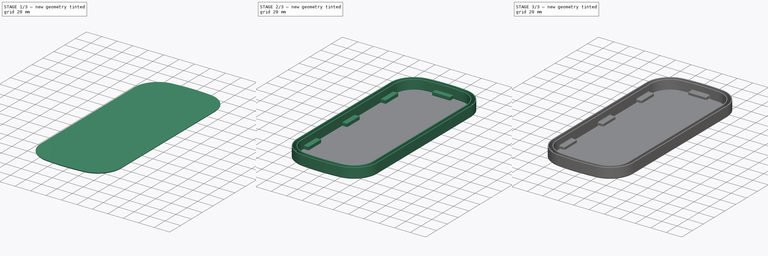
[diagram: build sequence overview — one tinted view per stage of 3, left to right]
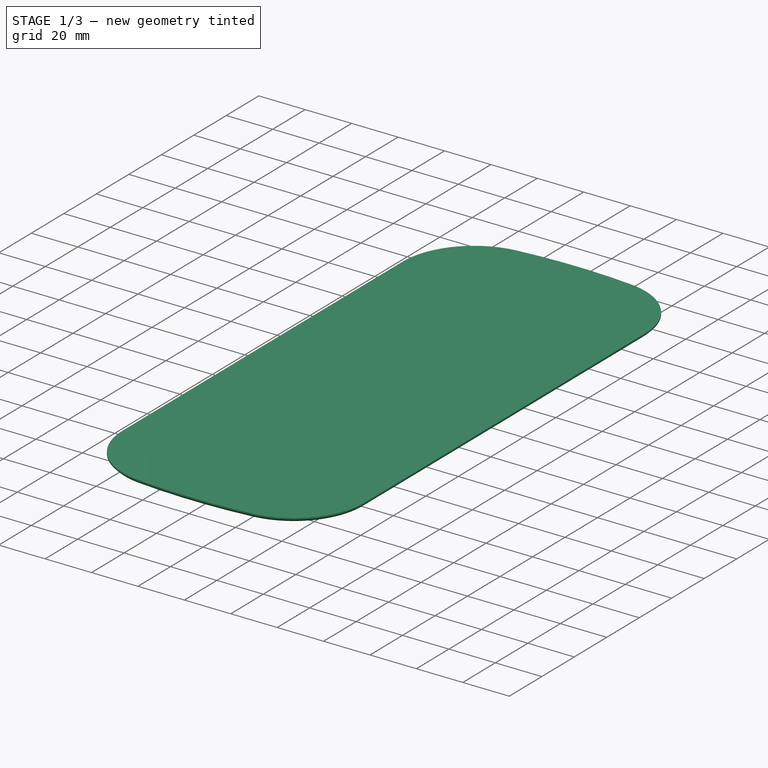
[diagram: stage 1 of 3 — iso view after this stage's code; geometry added in this stage tinted green]
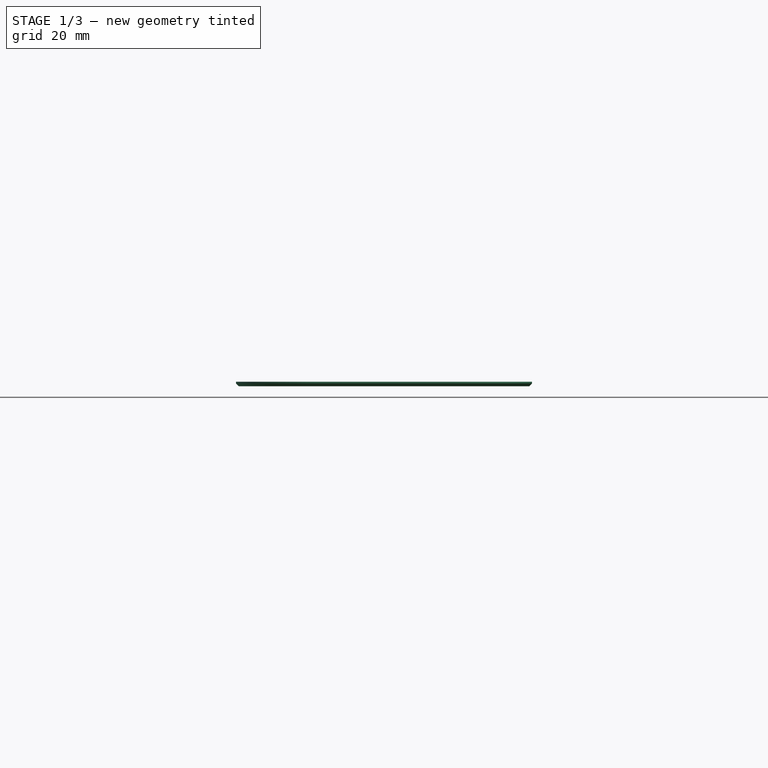
[diagram: stage 1 of 3 — front view after this stage's code; geometry added in this stage tinted green]
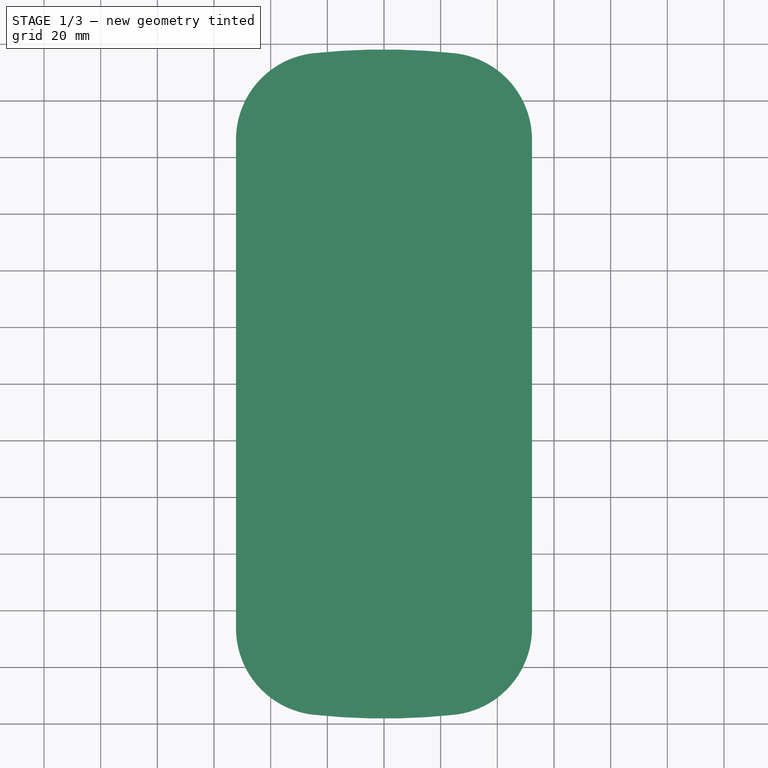
[diagram: stage 1 of 3 — top view after this stage's code; geometry added in this stage tinted green]
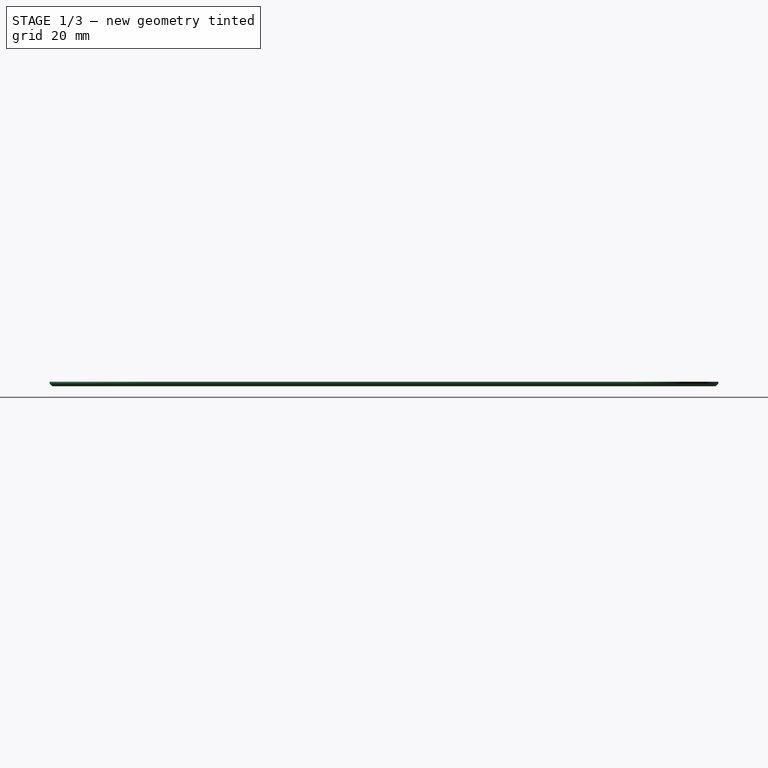
[diagram: stage 1 of 3 — right view after this stage's code; geometry added in this stage tinted green]
FCSTD DOCUMENT  (FreeCAD 1.1R44874 (Git))
Label: DryBoxCap
License: All rights reserved
LicenseURL: https://en.wikipedia.org/wiki/All_rights_reserved
objects: Sketcher::SketchObject×6, PartDesign::Pad×3, PartDesign::Fillet×2, App::Point×1, Image::ImagePlane×1, PartDesign::Chamfer×1, PartDesign::Pocket×1, PartDesign::Body×1
note: 34 computed .brp shape members not serialized (recipe doc carries the construction recipe); baked Part::Feature solids carry a one-line shape summary decoded from their .brp

FEATURE [App::Point] Origin001
  Role = Origin
FEATURE [Sketcher::SketchObject] Sketch
  ArcFitTolerance = 1e-06
  AttachmentSupport = -> [Origin]
  ExternalTypes = [0]
  FullyConstrained = true
  MakeInternals = false
  MapMode = 5
  _ExternalGeoVersion = 1
  expr: Constraints[12] = .Constraints.Length / 2.34
  expr: Constraints[26] = .Constraints.Length / 8
  sketch-geometry (10):
    g0: ArcOfCircle CenterX=0 CenterY=-115 CenterZ=0 NormalX=0 NormalY=0 NormalZ=1 AngleXU=0 Radius=230 StartAngle=1.46415 EndAngle=1.67745
    g1: ArcOfCircle CenterX=0 CenterY=115 CenterZ=0 NormalX=0 NormalY=0 NormalZ=1 AngleXU=0 Radius=230 StartAngle=4.60574 EndAngle=4.81904
    g2: LineSegment StartX=-49.1453 StartY=86.25 StartZ=0 EndX=-49.1453 EndY=-86.25 EndZ=0
    g3: LineSegment StartX=49.1453 StartY=86.25 StartZ=0 EndX=49.1453 EndY=-86.25 EndZ=0
    g4: LineSegment [constr] StartX=-49.1453 StartY=-86.25 StartZ=0 EndX=49.1453 EndY=-86.25 EndZ=0
    g5: LineSegment [constr] StartX=-49.1453 StartY=86.25 StartZ=0 EndX=49.1453 EndY=86.25 EndZ=0
    g6: ArcOfCircle CenterX=-21.5453 CenterY=86.25 CenterZ=0 NormalX=0 NormalY=0 NormalZ=1 AngleXU=0 Radius=27.6 StartAngle=1.67745 EndAngle=3.14159
    g7: ArcOfCircle CenterX=21.5453 CenterY=86.25 CenterZ=0 NormalX=0 NormalY=0 NormalZ=1 AngleXU=0 Radius=27.6 StartAngle=-9e-16 EndAngle=1.46415
    g8: ArcOfCircle CenterX=-21.5453 CenterY=-86.25 CenterZ=0 NormalX=0 NormalY=0 NormalZ=1 AngleXU=0 Radius=27.6 StartAngle=3.14159 EndAngle=4.60574
    g9: ArcOfCircle CenterX=21.5453 CenterY=-86.25 CenterZ=0 NormalX=0 NormalY=0 NormalZ=1 AngleXU=0 Radius=27.6 StartAngle=4.81904 EndAngle=6.28319
  constraints (29):
    c: PointOnObject(g0,g-2)
    c: Symmetric(g0,g1,g-1)
    c: Vertical(g3)
    c: Coincident(g4,g2)
    c: Coincident(g4,g3)
    c: Horizontal(g4)
    c: Coincident(g5,g2)
    c: Coincident(g5,g3)
    c: Symmetric(g2,g3,g-2)
    c: Symmetric(g2,g2,g-1)
    c: PointOnObject(g6,g5)
    c: Coincident(g6,g2)
    c: DistanceX(g2,g3) = 98.2906
    c: Tangent(g0,g6) = -1.5708
    c: Coincident(g7,g3)
    c: Tangent(g7,g0) = -1.5708
    c: PointOnObject(g0,g1)
    c: PointOnObject(g1,g0)
    c: DistanceY(g0,g1) = 230  'Length'
    c: PointOnObject(g8,g4)
    c: Coincident(g8,g2)
    c: Coincident(g9,g3)
    c: Tangent(g1,g9) = -1.5708
    c: Tangent(g1,g8) = -1.5708
    c: Equal(g7,g6)
    c: Equal(g8,g9)
    c: DistanceY(g2,g1) = 28.75
    c: Radius(g6) = 27.6
    c: DistanceY(g2,g2) = 172.5
FEATURE [Image::ImagePlane] PXL_20260516_094040783
  Placement = pos=(12.132,-8.31046,0) rot=(0,0,1;0.015708rad)
  XSize = 275
  YSize = 366.667
FEATURE [Sketcher::SketchObject] Sketch001
  ArcFitTolerance = 1e-06
  AttachmentSupport = -> [Origin]
  ExternalGeometry = -> [Sketch]
  ExternalTypes = [0,0,0,0,0,0]
  FullyConstrained = true
  MakeInternals = false
  MapMode = 5
  _ExternalGeoVersion = 1
  sketch-geometry (87):
    g0: ArcOfCircle CenterX=-21.5453 CenterY=86.25 CenterZ=0 NormalX=0 NormalY=0 NormalZ=1 AngleXU=0 Radius=30.7 StartAngle=1.67745 EndAngle=3.14159
    g1: ArcOfCircle CenterX=0 CenterY=-115 CenterZ=0 NormalX=0 NormalY=0 NormalZ=1 AngleXU=0 Radius=233.1 StartAngle=1.46415 EndAngle=1.67745
    g2: LineSegment [constr] StartX=-21.5453 StartY=86.25 StartZ=0 EndX=-24.8133 EndY=116.776 EndZ=0
    g3: LineSegment [constr] StartX=-21.5453 StartY=86.25 StartZ=0 EndX=-52.2453 EndY=86.25 EndZ=0
    g4: LineSegment [constr] StartX=21.5453 StartY=86.25 StartZ=0 EndX=24.8133 EndY=116.776 EndZ=0
    g5: ArcOfCircle CenterX=21.5453 CenterY=86.25 CenterZ=0 NormalX=0 NormalY=0 NormalZ=1 AngleXU=0 Radius=30.7 StartAngle=-9e-16 EndAngle=1.46415
    g6: LineSegment [constr] StartX=21.5453 StartY=86.25 StartZ=0 EndX=52.2453 EndY=86.25 EndZ=0
    g7: LineSegment [constr] StartX=-21.5453 StartY=-86.25 StartZ=0 EndX=-52.2453 EndY=-86.25 EndZ=0
    g8: LineSegment [constr] StartX=21.5453 StartY=-86.25 StartZ=0 EndX=52.2453 EndY=-86.25 EndZ=0
    g9: LineSegment [constr] StartX=21.5453 StartY=-86.25 StartZ=0 EndX=24.8133 EndY=-116.776 EndZ=0
    g10: LineSegment [constr] StartX=-21.5453 StartY=-86.25 StartZ=0 EndX=-24.8133 EndY=-116.776 EndZ=0
    g11: LineSegment StartX=52.2453 StartY=86.25 StartZ=0 EndX=52.2453 EndY=-86.25 EndZ=0
    g12: LineSegment StartX=-52.2453 StartY=86.25 StartZ=0 EndX=-52.2453 EndY=-86.25 EndZ=0
    g13: ArcOfCircle CenterX=-21.5453 CenterY=-86.25 CenterZ=0 NormalX=0 NormalY=0 NormalZ=1 AngleXU=0 Radius=30.7 StartAngle=3.14159 EndAngle=4.60574
    g14: ArcOfCircle CenterX=21.5453 CenterY=-86.25 CenterZ=0 NormalX=0 NormalY=0 NormalZ=1 AngleXU=0 Radius=30.7 StartAngle=4.81904 EndAngle=6.28319
    g15: ArcOfCircle CenterX=0 CenterY=115 CenterZ=0 NormalX=0 NormalY=0 NormalZ=1 AngleXU=0 Radius=233.1 StartAngle=4.60574 EndAngle=4.81904
    g16: ArcOfCircle CenterX=-21.5453 CenterY=86.25 CenterZ=0 NormalX=0 NormalY=0 NormalZ=1 AngleXU=0 Radius=24.5 StartAngle=1.67745 EndAngle=3.14159
    g17: ArcOfCircle CenterX=21.5453 CenterY=86.25 CenterZ=0 NormalX=0 NormalY=0 NormalZ=1 AngleXU=0 Radius=24.5 StartAngle=-9e-16 EndAngle=1.46415
    g18: ArcOfCircle CenterX=0 CenterY=115 CenterZ=0 NormalX=0 NormalY=0 NormalZ=1 AngleXU=0 Radius=226.9 StartAngle=4.60574 EndAngle=4.81904
    g19: ArcOfCircle CenterX=21.5453 CenterY=-86.25 CenterZ=0 NormalX=0 NormalY=0 NormalZ=1 AngleXU=0 Radius=24.5 StartAngle=4.81904 EndAngle=6.28319
    g20: ArcOfCircle CenterX=-21.5453 CenterY=-86.25 CenterZ=0 NormalX=0 NormalY=0 NormalZ=1 AngleXU=0 Radius=24.5 StartAngle=3.14159 EndAngle=4.60574
    g21: ArcOfCircle CenterX=0 CenterY=-115 CenterZ=0 NormalX=0 NormalY=0 NormalZ=1 AngleXU=0 Radius=226.9 StartAngle=1.46415 EndAngle=1.67745
    g22: LineSegment StartX=46.0453 StartY=86.25 StartZ=0 EndX=46.0453 EndY=-86.25 EndZ=0
    g23: LineSegment StartX=-46.0453 StartY=-86.25 StartZ=0 EndX=-46.0453 EndY=86.25 EndZ=0
    g24: LineSegment [constr] StartX=0 StartY=118.1 StartZ=0 EndX=0 EndY=111.9 EndZ=0
    g25: ArcOfCircle CenterX=-21.5453 CenterY=86.25 CenterZ=0 NormalX=0 NormalY=0 NormalZ=1 AngleXU=0 Radius=29.5 StartAngle=1.67745 EndAngle=3.14159
    g26: ArcOfCircle CenterX=0 CenterY=-115 CenterZ=0 NormalX=0 NormalY=0 NormalZ=1 AngleXU=0 Radius=231.9 StartAngle=1.46415 EndAngle=1.67745
    g27: ArcOfCircle CenterX=21.5453 CenterY=86.25 CenterZ=0 NormalX=0 NormalY=0 NormalZ=1 AngleXU=0 Radius=29.5 StartAngle=-9e-16 EndAngle=1.46415
    g28: LineSegment StartX=51.0453 StartY=86.25 StartZ=0 EndX=51.0453 EndY=-86.25 EndZ=0
    g29: ArcOfCircle CenterX=21.5453 CenterY=-86.25 CenterZ=0 NormalX=0 NormalY=0 NormalZ=1 AngleXU=0 Radius=29.5 StartAngle=4.81904 EndAngle=6.28319
    g30: ArcOfCircle CenterX=0 CenterY=115 CenterZ=0 NormalX=0 NormalY=0 NormalZ=1 AngleXU=0 Radius=231.9 StartAngle=4.60574 EndAngle=4.81904
    g31: ArcOfCircle CenterX=-21.5453 CenterY=-86.25 CenterZ=0 NormalX=0 NormalY=0 NormalZ=1 AngleXU=0 Radius=29.5 StartAngle=3.14159 EndAngle=4.60574
    g32: LineSegment StartX=-51.0453 StartY=-86.25 StartZ=0 EndX=-51.0453 EndY=86.25 EndZ=0
    g33: LineSegment [constr] StartX=0 StartY=-118.1 StartZ=0 EndX=0 EndY=-116.9 EndZ=0
    g34: ArcOfCircle CenterX=0 CenterY=-115 CenterZ=0 NormalX=0 NormalY=0 NormalZ=1 AngleXU=0 Radius=228.1 StartAngle=1.46415 EndAngle=1.67745
    g35: ArcOfCircle CenterX=21.5453 CenterY=86.25 CenterZ=0 NormalX=0 NormalY=0 NormalZ=1 AngleXU=0 Radius=25.7 StartAngle=-1.8e-15 EndAngle=1.46415
    g36: ArcOfCircle CenterX=-21.5453 CenterY=86.25 CenterZ=0 NormalX=0 NormalY=0 NormalZ=1 AngleXU=0 Radius=25.7 StartAngle=1.67745 EndAngle=3.14159
    g37: LineSegment StartX=47.2453 StartY=86.25 StartZ=0 EndX=47.2453 EndY=-86.25 EndZ=0
    g38: ArcOfCircle CenterX=21.5453 CenterY=-86.25 CenterZ=0 NormalX=0 NormalY=0 NormalZ=1 AngleXU=0 Radius=25.7 StartAngle=4.81904 EndAngle=6.28319
    g39: ArcOfCircle CenterX=0 CenterY=115 CenterZ=0 NormalX=0 NormalY=0 NormalZ=1 AngleXU=0 Radius=228.1 StartAngle=4.60574 EndAngle=4.81904
    g40: ArcOfCircle CenterX=-21.5453 CenterY=-86.25 CenterZ=0 NormalX=0 NormalY=0 NormalZ=1 AngleXU=0 Radius=25.7 StartAngle=3.14159 EndAngle=4.60574
    g41: LineSegment [constr] StartX=0 StartY=-111.9 StartZ=0 EndX=0 EndY=-113.1 EndZ=0
    g42: LineSegment StartX=-47.2453 StartY=-86.25 StartZ=0 EndX=-47.2453 EndY=86.25 EndZ=0
    g43: LineSegment StartX=-10 StartY=111.1 StartZ=0 EndX=-10 EndY=107.1 EndZ=0
    g44: LineSegment StartX=-10 StartY=107.1 StartZ=0 EndX=10 EndY=107.1 EndZ=0
    g45: LineSegment StartX=10 StartY=107.1 StartZ=0 EndX=10 EndY=111.1 EndZ=0
    g46: LineSegment StartX=10 StartY=111.1 StartZ=0 EndX=-10 EndY=111.1 EndZ=0
    g47: LineSegment StartX=-10 StartY=-107.1 StartZ=0 EndX=-10 EndY=-111.1 EndZ=0
    g48: LineSegment StartX=-10 StartY=-111.1 StartZ=0 EndX=10 EndY=-111.1 EndZ=0
    g49: LineSegment StartX=10 StartY=-111.1 StartZ=0 EndX=10 EndY=-107.1 EndZ=0
    g50: LineSegment StartX=10 StartY=-107.1 StartZ=0 EndX=-10 EndY=-107.1 EndZ=0
    g51: LineSegment StartX=45.2453 StartY=-81.25 StartZ=0 EndX=45.2453 EndY=-61.25 EndZ=0
    g52: LineSegment StartX=45.2453 StartY=-61.25 StartZ=0 EndX=41.2453 EndY=-61.25 EndZ=0
    g53: LineSegment StartX=41.2453 StartY=-61.25 StartZ=0 EndX=41.2453 EndY=-81.25 EndZ=0
    g54: LineSegment StartX=41.2453 StartY=-81.25 StartZ=0 EndX=45.2453 EndY=-81.25 EndZ=0
    g55: LineSegment StartX=-41.2453 StartY=-81.25 StartZ=0 EndX=-41.2453 EndY=-61.25 EndZ=0
    g56: LineSegment StartX=-41.2453 StartY=-61.25 StartZ=0 EndX=-45.2453 EndY=-61.25 EndZ=0
    g57: LineSegment StartX=-45.2453 StartY=-61.25 StartZ=0 EndX=-45.2453 EndY=-81.25 EndZ=0
    g58: LineSegment StartX=-45.2453 StartY=-81.25 StartZ=0 EndX=-41.2453 EndY=-81.25 EndZ=0
    g59: LineSegment StartX=41.2453 StartY=10 StartZ=0 EndX=41.2453 EndY=-10 EndZ=0
    g60: LineSegment StartX=41.2453 StartY=-10 StartZ=0 EndX=45.2453 EndY=-10 EndZ=0
    g61: LineSegment StartX=45.2453 StartY=-10 StartZ=0 EndX=45.2453 EndY=10 EndZ=0
    g62: LineSegment StartX=45.2453 StartY=10 StartZ=0 EndX=41.2453 EndY=10 EndZ=0
    g63: LineSegment StartX=41.2453 StartY=81.25 StartZ=0 EndX=41.2453 EndY=61.25 EndZ=0
    g64: LineSegment StartX=41.2453 StartY=61.25 StartZ=0 EndX=45.2453 EndY=61.25 EndZ=0
    g65: LineSegment StartX=45.2453 StartY=61.25 StartZ=0 EndX=45.2453 EndY=81.25 EndZ=0
    g66: LineSegment StartX=45.2453 StartY=81.25 StartZ=0 EndX=41.2453 EndY=81.25 EndZ=0
    g67: LineSegment StartX=-45.2453 StartY=81.25 StartZ=0 EndX=-45.2453 EndY=61.25 EndZ=0
    g68: LineSegment StartX=-45.2453 StartY=61.25 StartZ=0 EndX=-41.2453 EndY=61.25 EndZ=0
    g69: LineSegment StartX=-41.2453 StartY=61.25 StartZ=0 EndX=-41.2453 EndY=81.25 EndZ=0
    g70: LineSegment StartX=-41.2453 StartY=81.25 StartZ=0 EndX=-45.2453 EndY=81.25 EndZ=0
    g71: LineSegment StartX=-45.2453 StartY=10 StartZ=0 EndX=-45.2453 EndY=-10 EndZ=0
    g72: LineSegment StartX=-45.2453 StartY=-10 StartZ=0 EndX=-41.2453 EndY=-10 EndZ=0
    g73: LineSegment StartX=-41.2453 StartY=-10 StartZ=0 EndX=-41.2453 EndY=10 EndZ=0
    g74: LineSegment StartX=-41.2453 StartY=10 StartZ=0 EndX=-45.2453 EndY=10 EndZ=0
    g75: LineSegment [constr] StartX=0 StartY=118.1 StartZ=0 EndX=-10 EndY=118.1 EndZ=0
    g76: LineSegment [constr] StartX=-10 StartY=111.1 StartZ=0 EndX=-10 EndY=118.1 EndZ=0
    g77: LineSegment [constr] StartX=-45.2453 StartY=61.25 StartZ=0 EndX=-52.2453 EndY=61.25 EndZ=0
    g78: LineSegment [constr] StartX=-45.2453 StartY=-10 StartZ=0 EndX=-52.2453 EndY=-10 EndZ=0
    g79: LineSegment [constr] StartX=-45.2453 StartY=-81.25 StartZ=0 EndX=-52.2453 EndY=-81.25 EndZ=0
    g80: LineSegment [constr] StartX=-41.2453 StartY=-81.25 StartZ=0 EndX=-41.2453 EndY=-86.25 EndZ=0
    g81: LineSegment [constr] StartX=-41.2453 StartY=81.25 StartZ=0 EndX=-41.2453 EndY=86.25 EndZ=0
    g82: LineSegment [constr] StartX=0 StartY=-118.1 StartZ=0 EndX=10 EndY=-118.1 EndZ=0
    g83: LineSegment [constr] StartX=10 StartY=-111.1 StartZ=0 EndX=10 EndY=-118.1 EndZ=0
    g84: LineSegment [constr] StartX=45.2453 StartY=-61.25 StartZ=0 EndX=52.2453 EndY=-61.25 EndZ=0
    g85: LineSegment [constr] StartX=45.2453 StartY=10 StartZ=0 EndX=52.2453 EndY=10 EndZ=0
    g86: LineSegment [constr] StartX=45.2453 StartY=81.25 StartZ=0 EndX=52.2453 EndY=81.25 EndZ=0
  constraints (251):
    c: Coincident(g0,g-3)
    c: Coincident(g1,g-8)
    c: Coincident(g0,g1)
    c: Coincident(g2,g0)
    c: Coincident(g2,g0)
    c: PointOnObject(g-8,g2)
    c: Coincident(g3,g0)
    c: Coincident(g3,g0)
    c: PointOnObject(g-3,g3)
    c: Coincident(g4,g-4)
    c: Coincident(g4,g1)
    c: Coincident(g5,g4)
    c: Coincident(g5,g1)
    c: Coincident(g6,g4)
    c: Coincident(g6,g5)
    c: PointOnObject(g-8,g4)
    c: PointOnObject(g-4,g6)
    c: Coincident(g7,g-6)
    c: Coincident(g8,g-5)
    c: Coincident(g9,g8)
    c: Coincident(g10,g7)
    c: PointOnObject(g-6,g7)
    c: PointOnObject(g-7,g10)
    c: PointOnObject(g-7,g9)
    c: PointOnObject(g-5,g8)
    c: Coincident(g11,g5)
    c: Coincident(g11,g8)
    c: Vertical(g11)
    c: Coincident(g12,g0)
    c: Coincident(g12,g7)
    c: Coincident(g13,g7)
    c: Coincident(g13,g7)
    c: Coincident(g13,g10)
    c: Coincident(g14,g8)
    c: Coincident(g14,g8)
    c: Coincident(g14,g9)
    c: Coincident(g16,g0)
    c: PointOnObject(g16,g3)
    c: PointOnObject(g16,g2)
    c: Coincident(g17,g4)
    c: PointOnObject(g17,g4)
    c: PointOnObject(g17,g6)
    c: Coincident(g18,g15)
    c: PointOnObject(g18,g10)
    c: PointOnObject(g18,g9)
    c: Coincident(g19,g8)
    c: Coincident(g19,g18)
    c: PointOnObject(g19,g8)
    c: Coincident(g20,g7)
    c: Coincident(g20,g18)
    c: PointOnObject(g20,g7)
    c: Coincident(g21,g1)
    c: Coincident(g21,g16)
    c: Coincident(g21,g17)
    c: Coincident(g22,g17)
    c: Coincident(g22,g19)
    c: Vertical(g22)
    c: Coincident(g23,g20)
    c: Coincident(g23,g16)
    c: PointOnObject(g24,g1)
    c: PointOnObject(g24,g21)
    c: Symmetric(g24,g24,g15)
    c: Vertical(g24)
    c: Coincident(g15,g-7)
    c: Coincident(g10,g15)
    c: Coincident(g15,g9)
    c: Coincident(g25,g0)
    c: PointOnObject(g25,g3)
    c: PointOnObject(g25,g2)
    c: Coincident(g26,g1)
    c: Coincident(g26,g25)
    c: PointOnObject(g26,g4)
    c: Coincident(g27,g4)
    c: Coincident(g27,g26)
    c: PointOnObject(g27,g6)
    c: Coincident(g28,g27)
    c: PointOnObject(g28,g8)
    c: Vertical(g28)
    c: Coincident(g29,g8)
    c: Coincident(g29,g28)
    c: PointOnObject(g29,g9)
    c: Coincident(g30,g15)
    c: Coincident(g30,g29)
    c: PointOnObject(g30,g10)
    c: Coincident(g31,g7)
    c: Coincident(g31,g30)
    c: PointOnObject(g31,g7)
    c: Coincident(g32,g31)
    c: Coincident(g32,g25)
    c: PointOnObject(g33,g15)
    c: PointOnObject(g33,g30)
    c: Vertical(g33)
    c: PointOnObject(g1,g33)
    c: DistanceY(g33,g33) = 1.2
    c: Coincident(g34,g1)
    c: PointOnObject(g34,g2)
    c: PointOnObject(g34,g4)
    c: Coincident(g35,g4)
    c: Coincident(g35,g34)
    c: PointOnObject(g35,g6)
    c: Coincident(g36,g0)
    c: Coincident(g36,g34)
    c: PointOnObject(g36,g3)
    c: Coincident(g37,g35)
    c: PointOnObject(g37,g8)
    c: Vertical(g37)
    c: Coincident(g38,g8)
    c: Coincident(g38,g37)
    c: PointOnObject(g38,g9)
    c: Coincident(g39,g15)
    c: Coincident(g39,g38)
    c: PointOnObject(g39,g10)
    c: Coincident(g40,g7)
    c: Coincident(g40,g39)
    c: PointOnObject(g40,g7)
    c: PointOnObject(g41,g18)
    c: PointOnObject(g41,g39)
    c: Vertical(g41)
    c: PointOnObject(g1,g41)
    c: Equal(g41,g33)
    c: Coincident(g42,g40)
    c: Coincident(g42,g36)
    c: DistanceY(g33,g41) = 3.8
    c: Coincident(g43,g44)
    c: Coincident(g44,g45)
    c: Coincident(g45,g46)
    c: Coincident(g46,g43)
    c: Vertical(g43)
    c: Vertical(g45)
    c: Horizontal(g44)
    c: Coincident(g47,g48)
    c: Coincident(g48,g49)
    c: Coincident(g49,g50)
    c: Coincident(g50,g47)
    c: Vertical(g47)
    c: Vertical(g49)
    c: Horizontal(g48)
    c: Horizontal(g50)
    c: Coincident(g51,g52)
    c: Coincident(g52,g53)
    c: Coincident(g53,g54)
    c: Coincident(g54,g51)
    c: Vertical(g51)
    c: Vertical(g53)
    c: Horizontal(g52)
    c: Horizontal(g54)
    c: Coincident(g55,g56)
    c: Coincident(g56,g57)
    c: Coincident(g57,g58)
    c: Coincident(g58,g55)
    c: Vertical(g55)
    c: Vertical(g57)
    c: Horizontal(g56)
    c: Horizontal(g58)
    c: Coincident(g59,g60)
    c: Coincident(g60,g61)
    c: Coincident(g61,g62)
    c: Coincident(g62,g59)
    c: Vertical(g59)
    c: Vertical(g61)
    c: Horizontal(g60)
    c: Horizontal(g62)
    c: Coincident(g63,g64)
    c: Coincident(g64,g65)
    c: Coincident(g65,g66)
    c: Coincident(g66,g63)
    c: Vertical(g63)
    c: Vertical(g65)
    c: Horizontal(g64)
    c: Horizontal(g66)
    c: Coincident(g67,g68)
    c: Coincident(g68,g69)
    c: Coincident(g69,g70)
    c: Coincident(g70,g67)
    c: Vertical(g67)
    c: Vertical(g69)
    c: Horizontal(g68)
    c: Horizontal(g70)
    c: Coincident(g71,g72)
    c: Coincident(g72,g73)
    c: Coincident(g73,g74)
    c: Coincident(g74,g71)
    c: Vertical(g71)
    c: Horizontal(g72)
    c: Horizontal(g74)
    c: Equal(g43,g68)
    c: Equal(g68,g72)
    c: Equal(g72,g58)
    c: Equal(g58,g49)
    c: Equal(g49,g52)
    c: Equal(g52,g62)
    c: Equal(g62,g66)
    c: Equal(g44,g69)
    c: Equal(g69,g73)
    c: Equal(g73,g55)
    c: Equal(g55,g50)
    c: Equal(g50,g53)
    c: Equal(g53,g59)
    c: Equal(g59,g63)
    c: DistanceX(g56,g56) = 4
    c: Coincident(g75,g24)
    c: Coincident(g76,g43)
    c: Coincident(g76,g75)
    c: Vertical(g76)
    c: Horizontal(g75)
    c: DistanceY(g76,g76) = 7
    c: Coincident(g77,g67)
    c: PointOnObject(g77,g12)
    c: Horizontal(g77)
    c: Equal(g76,g77)
    c: Coincident(g78,g71)
    c: PointOnObject(g78,g12)
    c: Horizontal(g78)
    c: Equal(g77,g78)
    c: DistanceY(g55,g55) = 20
    c: Coincident(g79,g57)
    c: PointOnObject(g79,g12)
    c: Horizontal(g79)
    c: Equal(g78,g79)
    c: Coincident(g80,g55)
    c: PointOnObject(g80,g7)
    c: Vertical(g80)
    c: Coincident(g81,g69)
    c: PointOnObject(g81,g3)
    c: Vertical(g81)
    c: Equal(g81,g80)
    c: Coincident(g82,g33)
    c: Coincident(g83,g48)
    c: Coincident(g83,g82)
    c: Vertical(g83)
    c: Horizontal(g82)
    c: Symmetric(g43,g45,g24)
    c: Equal(g76,g83)
    c: PointOnObject(g47,g43)
    c: Symmetric(g72,g73,g-1)
    c: DistanceY(g67,g0) = 5
    c: Coincident(g84,g51)
    c: PointOnObject(g84,g11)
    c: Horizontal(g84)
    c: Equal(g83,g84)
    c: PointOnObject(g52,g56)
    c: Coincident(g85,g61)
    c: Horizontal(g85)
    c: PointOnObject(g85,g11)
    c: Equal(g84,g85)
    c: PointOnObject(g59,g74)
    c: Coincident(g86,g65)
    c: PointOnObject(g86,g11)
    c: Horizontal(g86)
    c: Equal(g85,g86)
    c: PointOnObject(g63,g70)
FEATURE [Sketcher::SketchObject] Sketch002
  ArcFitTolerance = 1e-06
  AttachmentSupport = -> [Sketch001]
  ExternalGeometry = -> [Sketch001]
  ExternalTypes = [0,0,0,0,0,0,0,0,0,0,0,0,0,0,0,0]
  FullyConstrained = true
  MakeInternals = false
  MapMode = 2
  _ExternalGeoVersion = 1
FEATURE [PartDesign::Pad] Pad
  Direction = (0,0,1)
  Length = 1.6
  Length2 = 10
  Profile = -> Sketch002
  ReferenceAxis = -> Sketch002 [N_Axis]
  Refine = true
  SideType = 0
  Suppressed = false
  Type = 0
  Type2 = 0
FEATURE [Sketcher::SketchObject] Sketch003
  ArcFitTolerance = 1e-06
  AttachmentOffset = pos=(0,0,1.6) rot=(0,0,1;0rad)
  AttachmentSupport = -> [Origin]
  ExternalGeometry = -> [Sketch001]
  ExternalTypes = [0,0,0,0,0,0,0,0,0,0,0,0,0,0,0,0,0,0,0,0,0,0,0,0,0,0,0,0,0,0,0,0]
  FullyConstrained = true
  MakeInternals = false
  MapMode = 5
  Placement = pos=(0,0,1.6) rot=(0,0,1;0rad)
  _ExternalGeoVersion = 1
  expr: .AttachmentOffset.Base.z = <<Pad>>.Length
FEATURE [PartDesign::Chamfer] Chamfer
  Angle = 45
  Base = -> Pad [Edge9]
  BaseFeature = -> Pad
  ChamferType = 0
  FlipDirection = false
  Refine = true
  Size = 1
  Size2 = 1
  SupportTransform = false
  Suppressed = false
  UseAllEdges = false
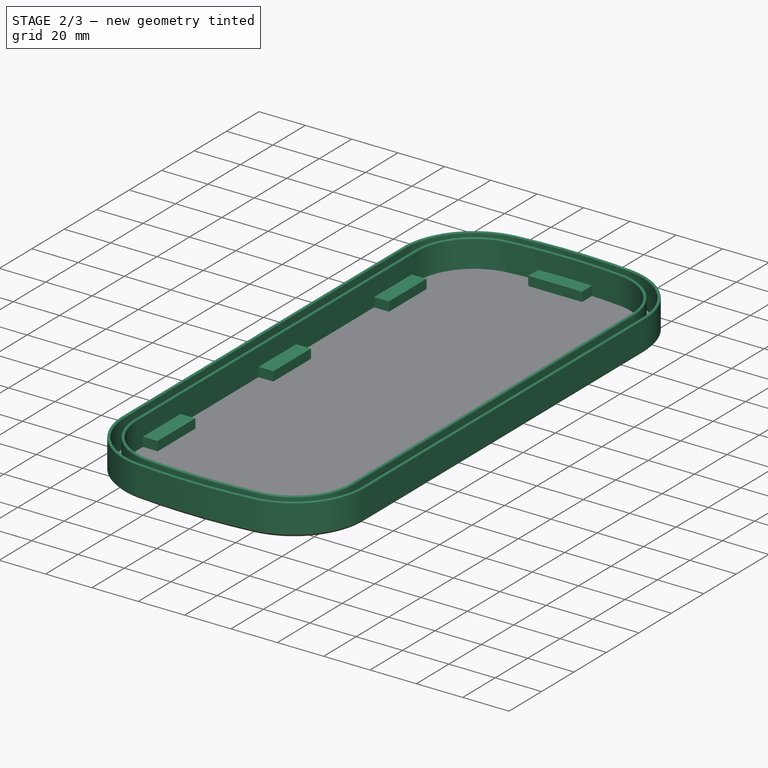
[diagram: stage 2 of 3 — iso view after this stage's code; geometry added in this stage tinted green]
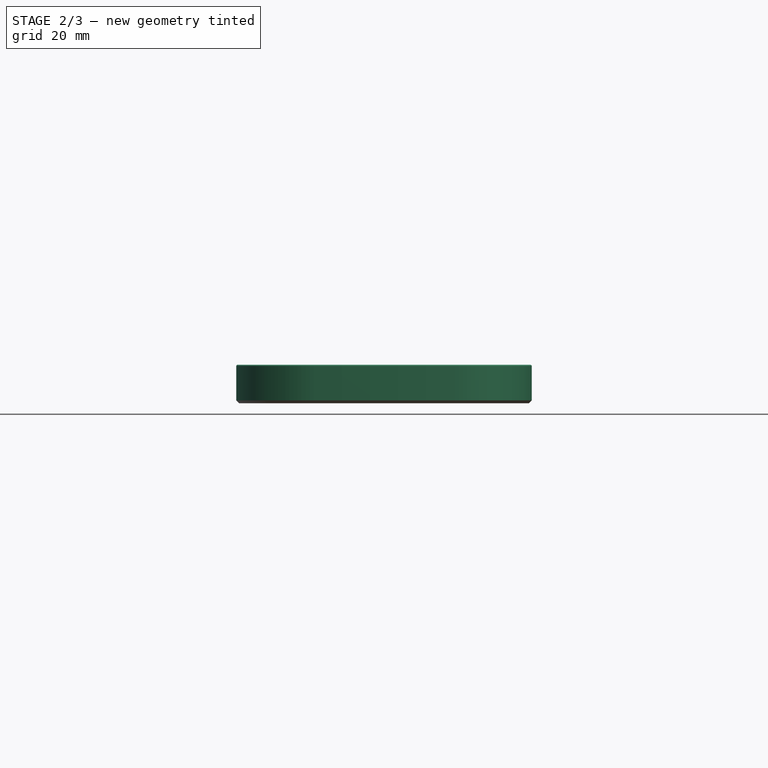
[diagram: stage 2 of 3 — front view after this stage's code; geometry added in this stage tinted green]
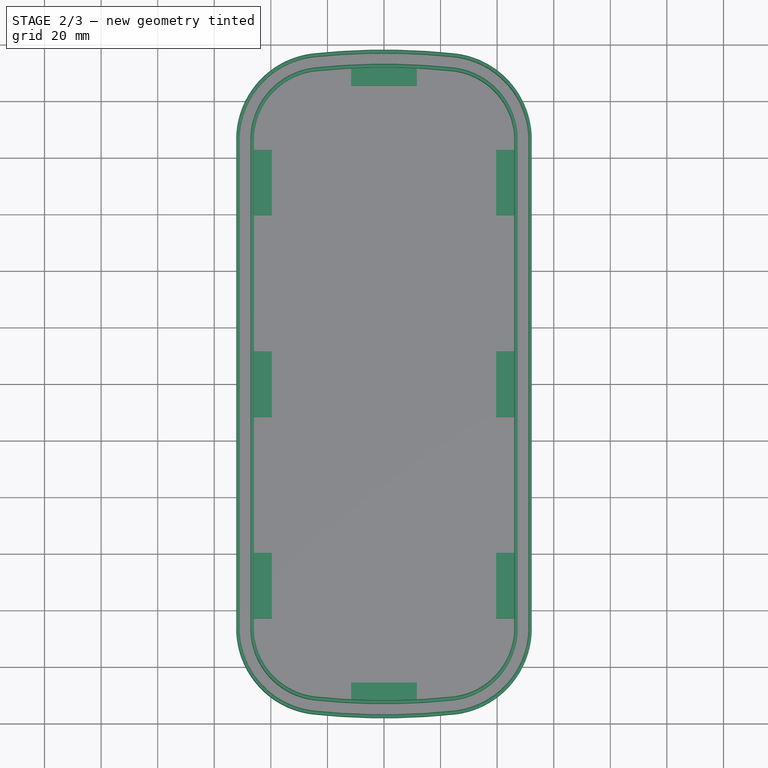
[diagram: stage 2 of 3 — top view after this stage's code; geometry added in this stage tinted green]
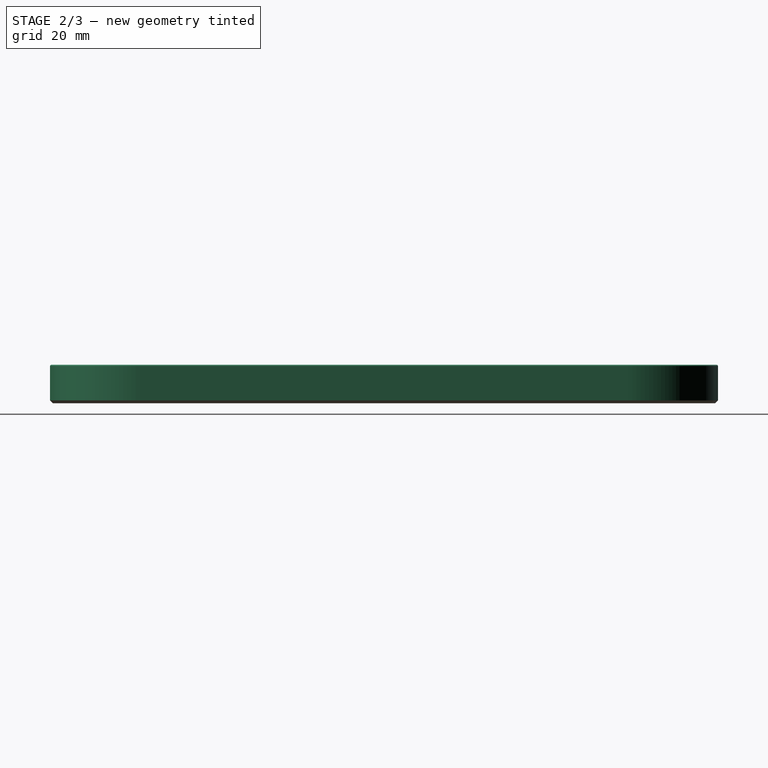
[diagram: stage 2 of 3 — right view after this stage's code; geometry added in this stage tinted green]
FEATURE [PartDesign::Pad] Pad001
  BaseFeature = -> Chamfer
  Direction = (0,0,1)
  Length = 12
  Length2 = 10
  Profile = -> Sketch003
  ReferenceAxis = -> Sketch003 [N_Axis]
  Refine = true
  SideType = 0
  Suppressed = false
  Type = 0
  Type2 = 0
FEATURE [Sketcher::SketchObject] Sketch004
  ArcFitTolerance = 1e-06
  AttachmentOffset = pos=(0,0,1.6) rot=(0,0,1;0rad)
  AttachmentSupport = -> [Origin]
  ExternalGeometry = -> [Sketch001]
  ExternalTypes = [0,0,0,0,0,0,0,0,0,0,0,0]
  FullyConstrained = true
  MakeInternals = false
  MapMode = 5
  Placement = pos=(0,0,1.6) rot=(0,0,1;0rad)
  _ExternalGeoVersion = 1
  expr: .AttachmentOffset.Base.z = <<Sketch003>>.AttachmentOffset.Base.z
  sketch-geometry (39):
    g0: ArcOfCircle CenterX=0 CenterY=-115 CenterZ=0 NormalX=0 NormalY=0 NormalZ=1 AngleXU=0 Radius=226.9 StartAngle=1.51965 EndAngle=1.62194
    g1: ArcOfCircle CenterX=0 CenterY=115 CenterZ=0 NormalX=0 NormalY=0 NormalZ=1 AngleXU=0 Radius=226.9 StartAngle=4.66124 EndAngle=4.76354
    g2: LineSegment StartX=-11.6 StartY=111.603 StartZ=0 EndX=-11.6 EndY=105.5 EndZ=0
    g3: LineSegment StartX=-11.6 StartY=105.5 StartZ=0 EndX=11.6 EndY=105.5 EndZ=0
    g4: LineSegment StartX=11.6 StartY=105.5 StartZ=0 EndX=11.6 EndY=111.603 EndZ=0
    g5: LineSegment [constr] StartX=-10 StartY=107.1 StartZ=0 EndX=-11.6 EndY=107.1 EndZ=0
    g6: LineSegment [constr] StartX=-10 StartY=107.1 StartZ=0 EndX=-10 EndY=105.5 EndZ=0
    g7: LineSegment [constr] StartX=10 StartY=107.1 StartZ=0 EndX=11.6 EndY=107.1 EndZ=0
    g8: LineSegment StartX=-46.0453 StartY=82.85 StartZ=0 EndX=-46.0453 EndY=59.65 EndZ=0
    g9: LineSegment StartX=-46.0453 StartY=59.65 StartZ=0 EndX=-39.6453 EndY=59.65 EndZ=0
    g10: LineSegment StartX=-39.6453 StartY=59.65 StartZ=0 EndX=-39.6453 EndY=82.85 EndZ=0
    g11: LineSegment StartX=-39.6453 StartY=82.85 StartZ=0 EndX=-46.0453 EndY=82.85 EndZ=0
    g12: LineSegment StartX=-46.0453 StartY=11.6 StartZ=0 EndX=-46.0453 EndY=-11.6 EndZ=0
    g13: LineSegment StartX=-46.0453 StartY=-11.6 StartZ=0 EndX=-39.6453 EndY=-11.6 EndZ=0
    g14: LineSegment StartX=-39.6453 StartY=-11.6 StartZ=0 EndX=-39.6453 EndY=11.6 EndZ=0
    g15: LineSegment StartX=-39.6453 StartY=11.6 StartZ=0 EndX=-46.0453 EndY=11.6 EndZ=0
    g16: LineSegment StartX=-46.0453 StartY=-59.65 StartZ=0 EndX=-46.0453 EndY=-82.85 EndZ=0
    g17: LineSegment StartX=-46.0453 StartY=-82.85 StartZ=0 EndX=-39.6453 EndY=-82.85 EndZ=0
    g18: LineSegment StartX=-39.6453 StartY=-82.85 StartZ=0 EndX=-39.6453 EndY=-59.65 EndZ=0
    g19: LineSegment StartX=-39.6453 StartY=-59.65 StartZ=0 EndX=-46.0453 EndY=-59.65 EndZ=0
    g20: LineSegment StartX=46.0453 StartY=-59.65 StartZ=0 EndX=39.6453 EndY=-59.65 EndZ=0
    g21: LineSegment StartX=39.6453 StartY=-59.65 StartZ=0 EndX=39.6453 EndY=-82.85 EndZ=0
    g22: LineSegment StartX=39.6453 StartY=-82.85 StartZ=0 EndX=46.0453 EndY=-82.85 EndZ=0
    g23: LineSegment StartX=46.0453 StartY=-82.85 StartZ=0 EndX=46.0453 EndY=-59.65 EndZ=0
    g24: LineSegment StartX=46.0453 StartY=11.6 StartZ=0 EndX=39.6453 EndY=11.6 EndZ=0
    g25: LineSegment StartX=39.6453 StartY=11.6 StartZ=0 EndX=39.6453 EndY=-11.6 EndZ=0
    g26: LineSegment StartX=39.6453 StartY=-11.6 StartZ=0 EndX=46.0453 EndY=-11.6 EndZ=0
    g27: LineSegment StartX=46.0453 StartY=-11.6 StartZ=0 EndX=46.0453 EndY=11.6 EndZ=0
    g28: LineSegment StartX=46.0453 StartY=82.85 StartZ=0 EndX=39.6453 EndY=82.85 EndZ=0
    g29: LineSegment StartX=39.6453 StartY=82.85 StartZ=0 EndX=39.6453 EndY=59.65 EndZ=0
    g30: LineSegment StartX=39.6453 StartY=59.65 StartZ=0 EndX=46.0453 EndY=59.65 EndZ=0
    g31: LineSegment StartX=46.0453 StartY=59.65 StartZ=0 EndX=46.0453 EndY=82.85 EndZ=0
    g32: LineSegment StartX=-11.6 StartY=-111.603 StartZ=0 EndX=-11.6 EndY=-105.5 EndZ=0
    g33: LineSegment StartX=-11.6 StartY=-105.5 StartZ=0 EndX=11.6 EndY=-105.5 EndZ=0
    g34: LineSegment StartX=11.6 StartY=-105.5 StartZ=0 EndX=11.6 EndY=-111.603 EndZ=0
    g35: LineSegment [constr] StartX=-41.2453 StartY=81.25 StartZ=0 EndX=-41.2453 EndY=82.85 EndZ=0
    g36: LineSegment [constr] StartX=-41.2453 StartY=81.25 StartZ=0 EndX=-39.6453 EndY=81.25 EndZ=0
    g37: LineSegment [constr] StartX=-41.2453 StartY=10 StartZ=0 EndX=-41.2453 EndY=11.6 EndZ=0
    g38: LineSegment [constr] StartX=-41.2453 StartY=-61.25 StartZ=0 EndX=-41.2453 EndY=-59.65 EndZ=0
  constraints (117):
    c: Coincident(g0,g-3)
    c: PointOnObject(g0,g-3)
    c: Coincident(g1,g-6)
    c: PointOnObject(g1,g-6)
    c: Coincident(g0,g2)
    c: Vertical(g2)
    c: Coincident(g2,g3)
    c: Horizontal(g3)
    c: Coincident(g3,g4)
    c: Coincident(g4,g0)
    c: Vertical(g4)
    c: Coincident(g5,g-14)
    c: PointOnObject(g5,g2)
    c: Horizontal(g5)
    c: Coincident(g6,g5)
    c: PointOnObject(g6,g3)
    c: Vertical(g6)
    c: Coincident(g7,g-14)
    c: PointOnObject(g7,g4)
    c: Horizontal(g7)
    c: Equal(g5,g6)
    c: Equal(g6,g7)
    c: DistanceX(g2,g6) = 1.6
    c: Coincident(g8,g9)
    c: Coincident(g9,g10)
    c: Coincident(g10,g11)
    c: Coincident(g11,g8)
    c: Vertical(g8)
    c: Vertical(g10)
    c: Horizontal(g9)
    c: Horizontal(g11)
    c: PointOnObject(g8,g-5)
    c: Coincident(g12,g13)
    c: Coincident(g13,g14)
    c: Coincident(g14,g15)
    c: Coincident(g15,g12)
    c: Vertical(g12)
    c: Vertical(g14)
    c: Horizontal(g13)
    c: Horizontal(g15)
    c: PointOnObject(g12,g-5)
    c: Coincident(g16,g17)
    c: Coincident(g17,g18)
    c: Coincident(g18,g19)
    c: Coincident(g19,g16)
    c: Vertical(g16)
    c: Vertical(g18)
    c: Horizontal(g17)
    c: Horizontal(g19)
    c: PointOnObject(g16,g-5)
    c: Coincident(g20,g21)
    c: Coincident(g21,g22)
    c: Coincident(g22,g23)
    c: Coincident(g23,g20)
    c: Horizontal(g20)
    c: Horizontal(g22)
    c: Vertical(g21)
    c: Vertical(g23)
    c: PointOnObject(g20,g-4)
    c: Coincident(g24,g25)
    c: Coincident(g25,g26)
    c: Coincident(g26,g27)
    c: Coincident(g27,g24)
    c: Horizontal(g24)
    c: Horizontal(g26)
    c: Vertical(g25)
    c: Vertical(g27)
    c: PointOnObject(g24,g-4)
    c: Coincident(g28,g29)
    c: Coincident(g29,g30)
    c: Coincident(g30,g31)
    c: Coincident(g31,g28)
    c: Horizontal(g28)
    c: Horizontal(g30)
    c: Vertical(g29)
    c: Vertical(g31)
    c: PointOnObject(g28,g-4)
    c: Coincident(g1,g32)
    c: Vertical(g32)
    c: Coincident(g32,g33)
    c: Horizontal(g33)
    c: Coincident(g33,g34)
    c: Coincident(g34,g1)
    c: Vertical(g34)
    c: PointOnObject(g33,g4)
    c: PointOnObject(g32,g2)
    c: Coincident(g35,g-12)
    c: PointOnObject(g35,g11)
    c: Vertical(g35)
    c: Coincident(g36,g35)
    c: PointOnObject(g36,g10)
    c: Horizontal(g36)
    c: Equal(g6,g35)
    c: Equal(g35,g36)
    c: PointOnObject(g28,g11)
    c: PointOnObject(g29,g9)
    c: Equal(g28,g11)
    c: Equal(g3,g10)
    c: PointOnObject(g14,g10)
    c: Coincident(g37,g-10)
    c: PointOnObject(g37,g15)
    c: Vertical(g37)
    c: Equal(g37,g36)
    c: Equal(g14,g10)
    c: PointOnObject(g24,g15)
    c: PointOnObject(g25,g13)
    c: Equal(g24,g30)
    c: Coincident(g38,g-8)
    c: PointOnObject(g38,g19)
    c: Vertical(g38)
    c: Equal(g38,g37)
    c: Equal(g14,g18)
    c: Equal(g19,g13)
    c: PointOnObject(g20,g19)
    c: PointOnObject(g21,g17)
    c: Equal(g20,g19)
    c: Equal(g34,g4)
FEATURE [PartDesign::Fillet] Fillet
  Base = -> Pad001 [Edge3,Edge11,Edge47,Edge63]
  BaseFeature = -> Pad001
  Radius = 0.5
  Refine = true
  SupportTransform = false
  Suppressed = false
  UseAllEdges = false
FEATURE [PartDesign::Pad] Pad002
  BaseFeature = -> Fillet
  Direction = (0,0,1)
  Length = 4
  Length2 = 10
  Profile = -> Sketch004
  ReferenceAxis = -> Sketch004 [N_Axis]
  Refine = true
  SideType = 0
  Suppressed = false
  Type = 0
  Type2 = 0
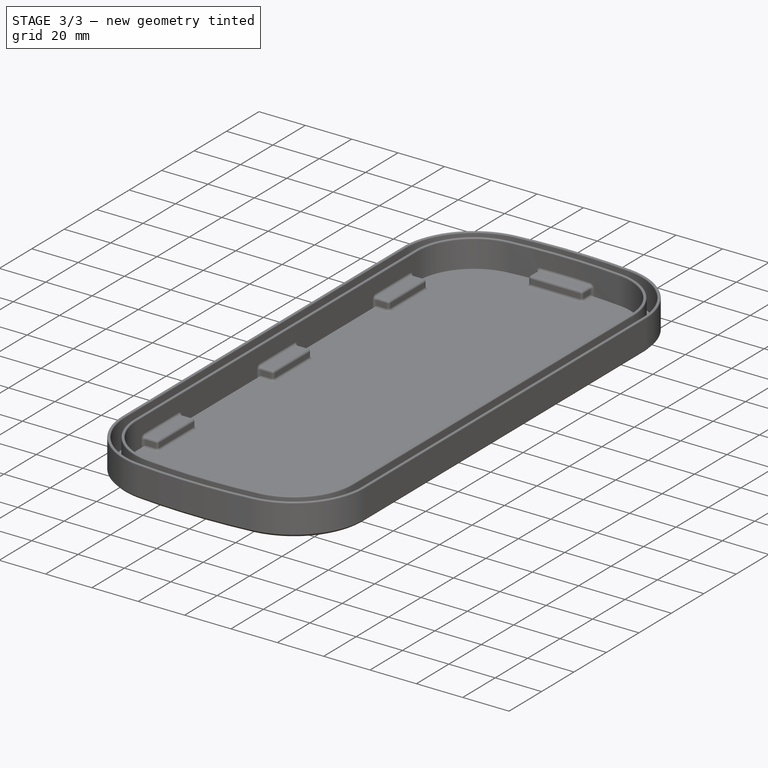
[diagram: stage 3 of 3 — iso view after this stage's code; geometry added in this stage tinted green]
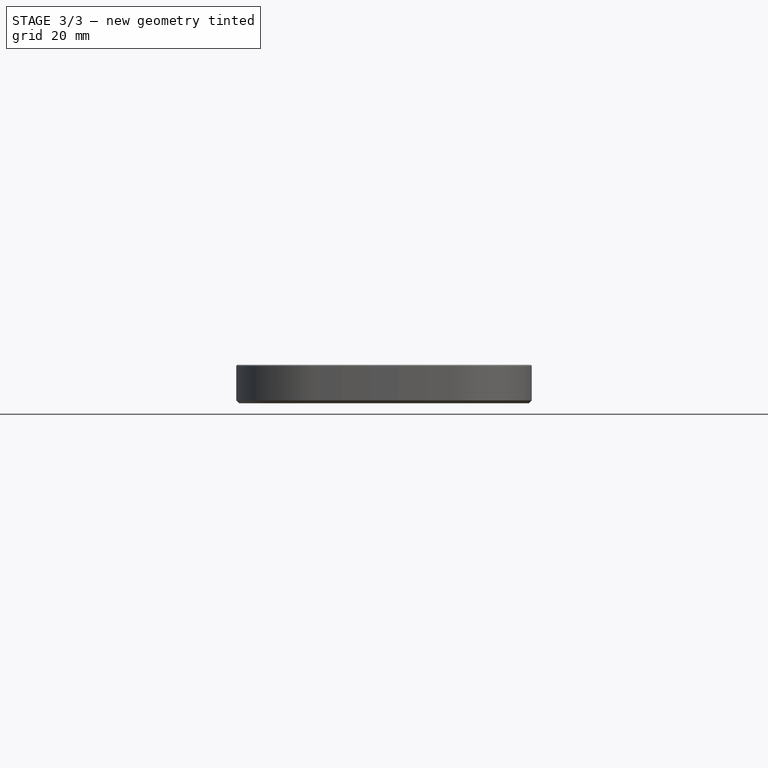
[diagram: stage 3 of 3 — front view after this stage's code; geometry added in this stage tinted green]
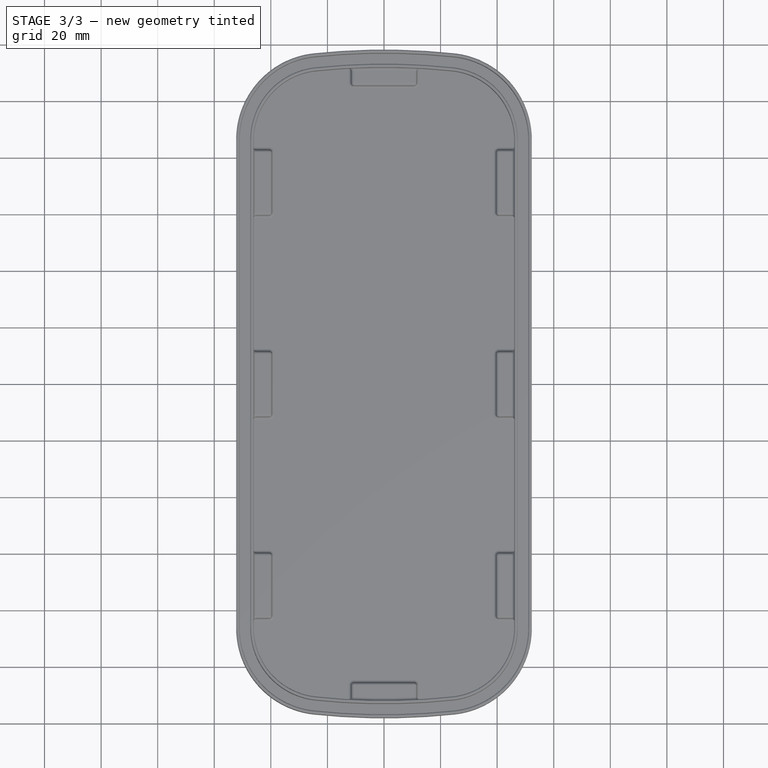
[diagram: stage 3 of 3 — top view after this stage's code; geometry added in this stage tinted green]
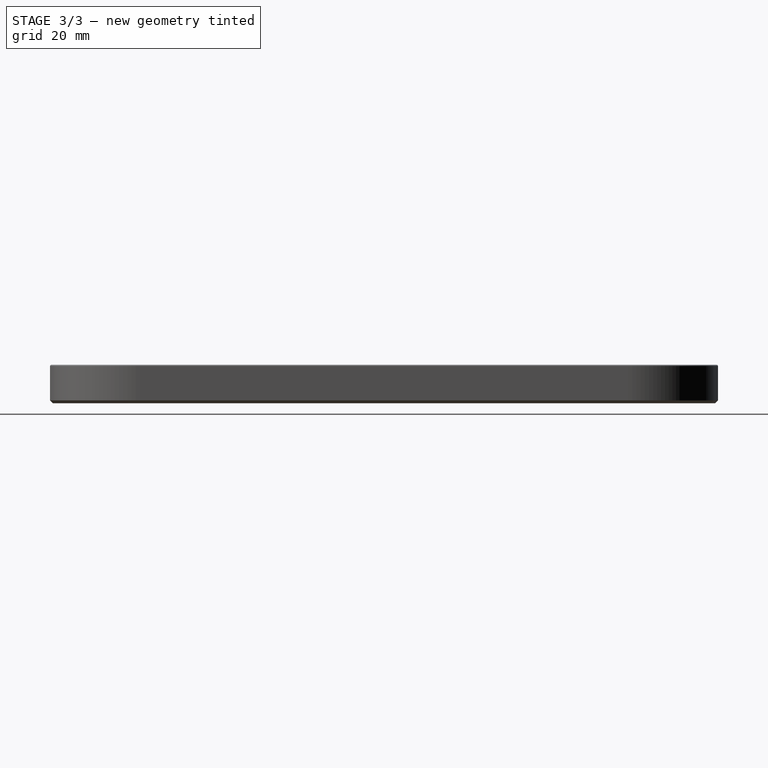
[diagram: stage 3 of 3 — right view after this stage's code; geometry added in this stage tinted green]
FEATURE [PartDesign::Fillet] Fillet001
  Base = -> Pad002 [Face88,Face87,Face104,Face89,Face85,Face84,Face103,Face86,Face83,Face82,Face102,Face81,Face101,Face109,Face100,Face99,Face96,Face108,Face97,Face98,Face95,Face94,Face107,Face93,Face90,Face106,Face91,Face92,Face80,Face105,Face79,Face78]
  BaseFeature = -> Pad002
  Radius = 1
  Refine = true
  SupportTransform = false
  Suppressed = false
  UseAllEdges = false
FEATURE [Sketcher::SketchObject] Sketch005
  ArcFitTolerance = 1e-06
  AttachmentSupport = -> [Origin]
  ExternalGeometry = -> [Sketch001]
  ExternalTypes = [0,0,0,0,0,0,0,0,0,0,0,0,0,0,0,0,0,0,0,0,0,0,0,0,0,0,0,0,0,0,0,0]
  FullyConstrained = true
  MakeInternals = false
  MapMode = 5
  _ExternalGeoVersion = 1
FEATURE [PartDesign::Pocket] Pocket
  BaseFeature = -> Fillet001
  Direction = (0,0,-1)
  Length = 4
  Length2 = 5
  Profile = -> Sketch005
  ReferenceAxis = -> Sketch005 [N_Axis]
  Refine = true
  Reversed = true
  SideType = 0
  Suppressed = false
  Type = 0
  Type2 = 0
FEATURE [PartDesign::Body] Body
  AllowCompound = false
  Group = -> [Sketch,Sketch001,Sketch002,Pad,Sketch003,Chamfer,Pad001,Sketch004,Fillet,Pad002,Fillet001,Sketch005,Pocket]
  Origin = -> Origin
  Tip = -> Pocket
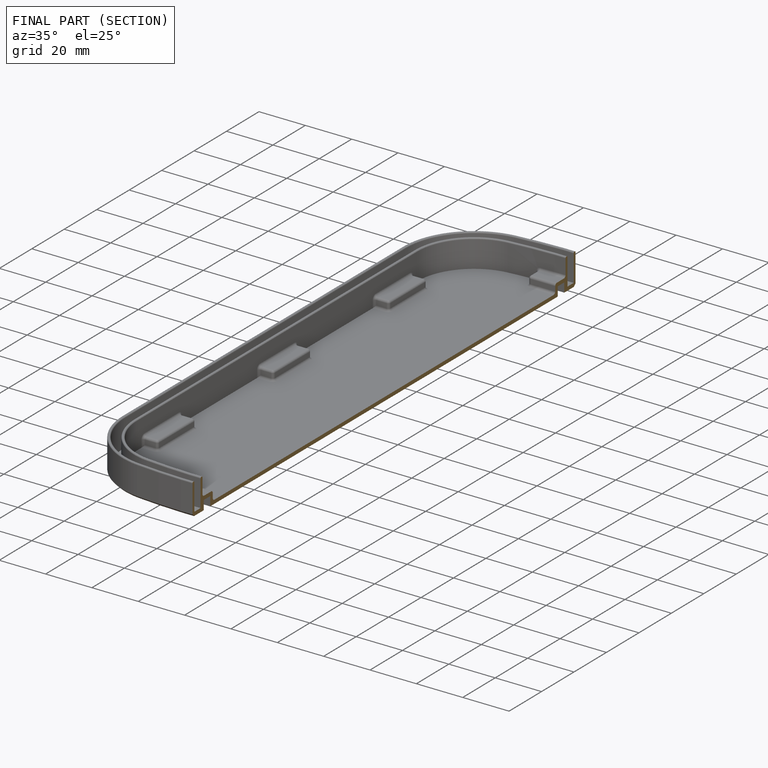
[diagram: finished part — half-section view (interior)]
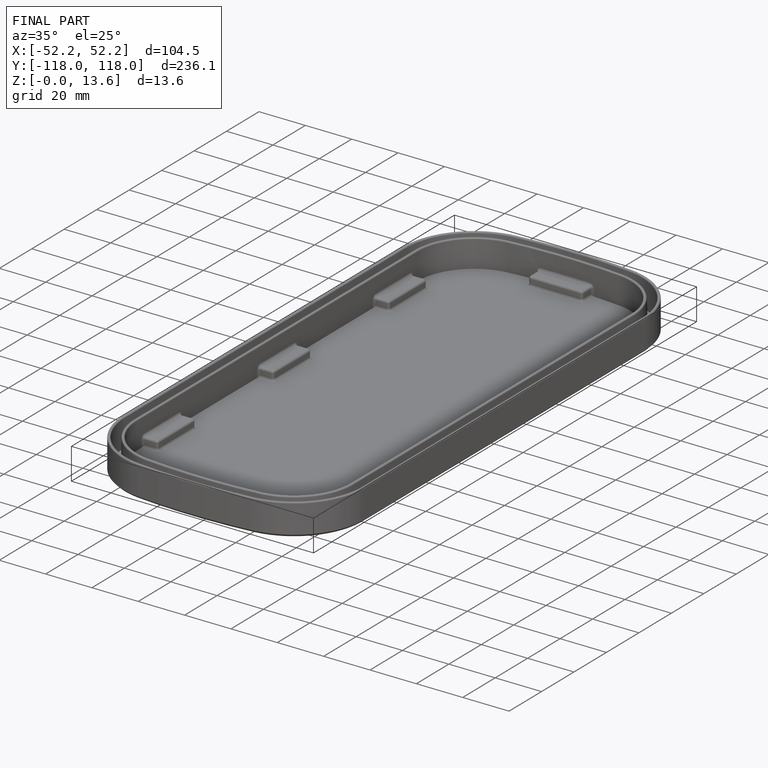
[diagram: finished part — iso view with bounding-box wireframe]
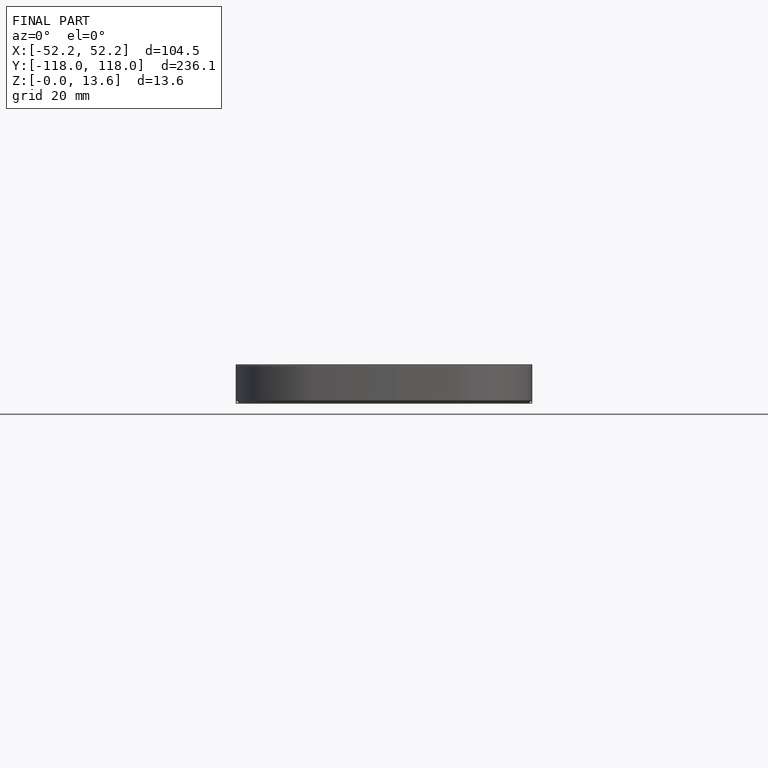
[diagram: finished part — front view with bounding-box wireframe]
